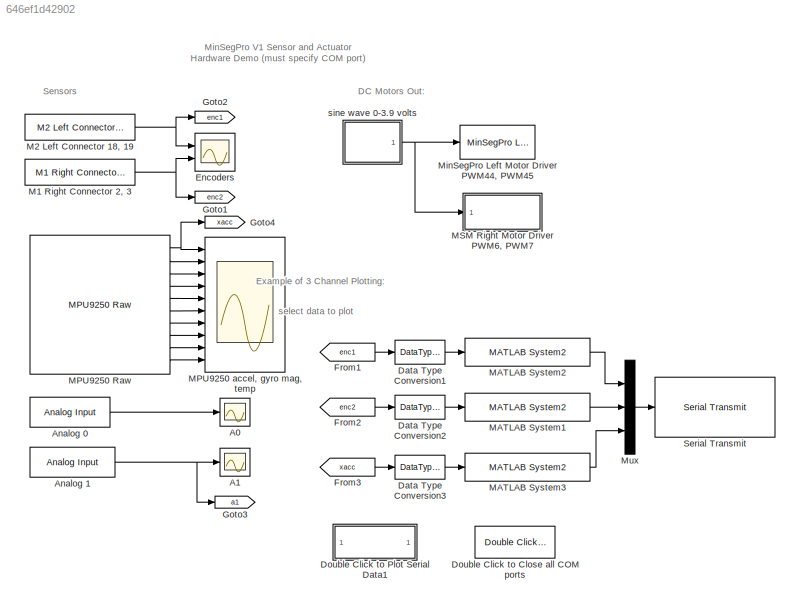
MODEL slx_646ef1d42902
KIND model
CONFIG AbsTol = auto
CONFIG FixedStep = auto
CONFIG MaxStep = auto
CONFIG MinStep = auto
CONFIG RelTol = 1e-3
CONFIG SampleTimeConstraint = Unconstrained
CONFIG Solver = ode45
CONFIG SolverMode = Auto
CONFIG SolverName = ode45
CONFIG StartTime = 0.0
CONFIG StopTime = 10.0
BLOCK [Scope] A0 
  DataFormat = StructureWithTime
  Floating = off
  NumInputPorts = 1
  Ports = [1]
  SampleTime = 0
  SaveName = ScopeData3
  TimeRange = 30
  YMax = 1100
  YMin = 100
BLOCK [Scope] A1
  DataFormat = StructureWithTime
  Floating = off
  NumInputPorts = 1
  Ports = [1]
  SampleTime = 0
  SaveName = ScopeData4
  TimeRange = 30
  YMax = 1100
  YMin = 300
BLOCK [Reference] Analog 0  REF=arduinolib/Analog Input
  Ports = [0, 1]
  SourceBlock = arduinolib/Analog Input
  SourceType = Arduino Analog Input
  blockPlatform = arduino
  pinNumber = 0
  sampleTime = -1
BLOCK [Reference] Analog 1  REF=arduinolib/Analog Input
  Ports = [0, 1]
  SourceBlock = arduinolib/Analog Input
  SourceType = Arduino Analog Input
  blockPlatform = arduino
  pinNumber = 1
  sampleTime = -1
BLOCK [DataTypeConversion] Data Type Conversion1
  OutDataTypeStr = single
  RndMeth = Floor
  SaturateOnIntegerOverflow = off
BLOCK [DataTypeConversion] Data Type Conversion2
  OutDataTypeStr = single
  RndMeth = Floor
  SaturateOnIntegerOverflow = off
BLOCK [DataTypeConversion] Data Type Conversion3
  OutDataTypeStr = single
  RndMeth = Floor
  SaturateOnIntegerOverflow = off
BLOCK [Reference] Double Click to Close all COM ports  REF=RASPlib/Double Click to
Close all COM ports
  Ports = []
  SourceBlock = RASPlib/Double Click to\nClose all COM ports
BLOCK [SubSystem] Double Click to Plot Serial Data1
  Ports = []
  RequestExecContextInheritance = off
BLOCK [Scope] Encoders
  DataFormat = StructureWithTime
  Floating = off
  NumInputPorts = 2
  Ports = [2]
  SampleTime = 0
  TimeRange = 30
  YMax = 1.05~112.35
  YMin = 0.95~101.65
BLOCK [From] From1
  GotoTag = enc1
BLOCK [From] From2
  GotoTag = enc2
BLOCK [From] From3
  GotoTag = xacc
BLOCK [Goto] Goto1
  GotoTag = enc2
BLOCK [Goto] Goto2
  GotoTag = enc1
BLOCK [Goto] Goto3
  GotoTag = a1
BLOCK [Goto] Goto4
  GotoTag = xacc
BLOCK [Reference] M1 Right Connector 2, 3  REF=MinSegLibrary_MinSegPro/M1 Right Connector 2, 3
  Encoder = 0
  PinA = 2
  PinB = 3
  Ports = [0, 1]
  SourceBlock = MinSegLibrary_MinSegPro/M1 Right Connector 2, 3
  SourceType = Encoder_arduino
BLOCK [Reference] M2 Left Connector 18, 19  REF=MinSegLibrary_MinSegPro/M2 Left Connector 18, 19
  Encoder = 1
  PinA = 19
  PinB = 18
  Ports = [0, 1]
  SourceBlock = MinSegLibrary_MinSegPro/M2 Left Connector 18, 19
  SourceType = Encoder_arduino
BLOCK [Reference] MATLAB System1  REF=RASPlib/Send single Port0/MATLAB System2
  Ports = [1, 1]
  SimulateUsing = Code generation
  SourceBlock = RASPlib/Send single Port0/MATLAB System2
  SourceType = so_float2bytes
BLOCK [Reference] MATLAB System2  REF=RASPlib/Send single Port0/MATLAB System2
  Ports = [1, 1]
  SimulateUsing = Code generation
  SourceBlock = RASPlib/Send single Port0/MATLAB System2
  SourceType = so_float2bytes
BLOCK [Reference] MATLAB System3  REF=RASPlib/Send single Port0/MATLAB System2
  Ports = [1, 1]
  SimulateUsing = Code generation
  SourceBlock = RASPlib/Send single Port0/MATLAB System2
  SourceType = so_float2bytes
BLOCK [Reference] MPU9250 Raw  REF=RASPlib/MPU9250 Raw
  Ports = [0, 10]
  SimulateUsing = Code generation
  SourceBlock = RASPlib/MPU9250 Raw
  SourceType = soMPU9250RAW
BLOCK [Scope] MPU9250 accel, gyro mag, temp
  DataFormat = StructureWithTime
  Floating = off
  NumInputPorts = 10
  Ports = [10]
  SampleTime = 0
  SaveName = ScopeData1
  TimeRange = 10
  YMax = 40000~40000~40000~5000~3000~27500~5~5~5~5
  YMin = -40000~-40000~-40000~-12500~-8000~7500~-5~-5~-5~-5
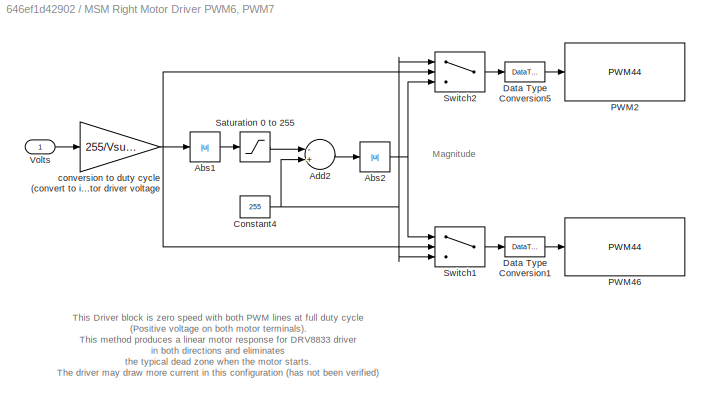
BLOCK [SubSystem] MSM Right Motor Driver PWM6, PWM7 
  Ports = [1]
  RequestExecContextInheritance = off
BLOCK [Abs] MSM Right Motor Driver PWM6, PWM7 /Abs1
  SaturateOnIntegerOverflow = off
BLOCK [Abs] MSM Right Motor Driver PWM6, PWM7 /Abs2
  SaturateOnIntegerOverflow = off
BLOCK [Sum] MSM Right Motor Driver PWM6, PWM7 /Add2
  InputSameDT = off
  Inputs = -+
  OutDataTypeStr = Inherit: Inherit via internal rule
  Ports = [2, 1]
  SaturateOnIntegerOverflow = off
BLOCK [Constant] MSM Right Motor Driver PWM6, PWM7 /Constant4
  Value = 255
BLOCK [DataTypeConversion] MSM Right Motor Driver PWM6, PWM7 /Data Type Conversion1
  OutDataTypeStr = uint8
  RndMeth = Floor
  SaturateOnIntegerOverflow = off
BLOCK [DataTypeConversion] MSM Right Motor Driver PWM6, PWM7 /Data Type Conversion5
  OutDataTypeStr = uint8
  RndMeth = Floor
  SaturateOnIntegerOverflow = off
BLOCK [Reference] MSM Right Motor Driver PWM6, PWM7 /PWM2  REF=MinSegLibrary_MinSegMega/MSM Left Motor Driver
PWM44, PWM45/PWM44
  Pin = 6
  Ports = [1]
  SourceBlock = MinSegLibrary_MinSegMega/MSM Left Motor Driver\nPWM44, PWM45/PWM44
  SourceType = soPWMWrite
BLOCK [Reference] MSM Right Motor Driver PWM6, PWM7 /PWM46  REF=MinSegLibrary_MinSegMega/MSM Left Motor Driver
PWM44, PWM45/PWM44
  Pin = 7
  Ports = [1]
  SourceBlock = MinSegLibrary_MinSegMega/MSM Left Motor Driver\nPWM44, PWM45/PWM44
  SourceType = soPWMWrite
BLOCK [Saturate] MSM Right Motor Driver PWM6, PWM7 /Saturation 0 to 255
  InputPortMap = u0
  LowerLimit = 0
  Ports = [1, 1]
  UpperLimit = 255
BLOCK [Switch] MSM Right Motor Driver PWM6, PWM7 /Switch1
  InputSameDT = off
  SaturateOnIntegerOverflow = off
BLOCK [Switch] MSM Right Motor Driver PWM6, PWM7 /Switch2
  InputSameDT = off
  SaturateOnIntegerOverflow = off
BLOCK [Inport] MSM Right Motor Driver PWM6, PWM7 /Volts
  IconDisplay = Port number
BLOCK [Gain] MSM Right Motor Driver PWM6, PWM7 /conversion to duty cycle (convert to int) denominator is motor driver voltage
  Gain = 255/Vsupply
  OutDataTypeStr = int16
  ParamDataTypeStr = Inherit: Inherit via internal rule
  SaturateOnIntegerOverflow = off
BLOCK [Reference] MinSegPro Left Motor Driver PWM44, PWM45  REF=MinSegLibrary_MinSegPro/MinSegPro Left Motor Driver
PWM44, PWM45
  PWMoffset = 0
  Ports = [1]
  SourceBlock = MinSegLibrary_MinSegPro/MinSegPro Left Motor Driver\nPWM44, PWM45
  Vsupply = 3.9
BLOCK [Mux] Mux
  DisplayOption = bar
  Inputs = 3
  Ports = [3, 1]
BLOCK [Reference] Serial Transmit  REF=arduinolib/Serial Transmit
  Ports = [1]
  SourceBlock = arduinolib/Serial Transmit
  SourceType = Arduino Serial Transmit
  blockPlatform = arduino
  portNumber = 0
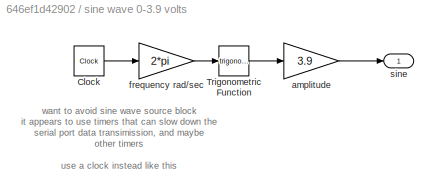
BLOCK [SubSystem] sine wave 0-3.9 volts
  Ports = [0, 1]
  RequestExecContextInheritance = off
BLOCK [Clock] sine wave 0-3.9 volts/Clock
BLOCK [Trigonometry] sine wave 0-3.9 volts/Trigonometric Function
  Ports = [1, 1]
BLOCK [Gain] sine wave 0-3.9 volts/amplitude
  Gain = 3.9
  OutDataTypeStr = Inherit: Inherit via internal rule
  ParamDataTypeStr = Inherit: Inherit via internal rule
  SaturateOnIntegerOverflow = off
BLOCK [Gain] sine wave 0-3.9 volts/frequency rad//sec
  Gain = 2*pi
  OutDataTypeStr = Inherit: Inherit via internal rule
  ParamDataTypeStr = Inherit: Inherit via internal rule
  SaturateOnIntegerOverflow = off
BLOCK [Outport] sine wave 0-3.9 volts/sine
  IconDisplay = Port number
ANNOTATION (root): Example of 3 Channel Plotting:
ANNOTATION (root): DC Motors Out:
ANNOTATION (root): MinSegPro V1 Sensor and Actuator Hardware Demo (must specify COM port)
ANNOTATION (root): Sensors
ANNOTATION (root): select data to plot
ANNOTATION MSM Right Motor Driver PWM6, PWM7 : Magnitude
ANNOTATION MSM Right Motor Driver PWM6, PWM7 : This Driver block is zero speed with both PWM lines at full duty cycle (Positive voltage on both motor terminals). This method produces a linear motor response for DRV8833 driver in both directions and eliminates the typical dead zone when the motor starts. The driver may draw more current in this configuration (has not been verified) The SN754410 driver this has no effect, so the driver could alt...<+76ch>
ANNOTATION sine wave 0-3.9 volts: want to avoid sine wave source block it appears to use timers that can slow down the serial port data transimission, and maybe other timers use a clock instead like this
LINE Analog 0:1 -> A0 :1
NET Analog 1:1 -> A1:1, Goto3:1
LINE Data Type Conversion1:1 -> MATLAB System2:1
LINE Data Type Conversion2:1 -> MATLAB System1:1
LINE Data Type Conversion3:1 -> MATLAB System3:1
LINE From1:1 -> Data Type Conversion1:1
LINE From2:1 -> Data Type Conversion2:1
LINE From3:1 -> Data Type Conversion3:1
NET M1 Right Connector 2, 3:1 -> Encoders:2, Goto1:1
NET M2 Left Connector 18, 19:1 -> Encoders:1, Goto2:1
LINE MATLAB System1:1 -> Mux:2
LINE MATLAB System2:1 -> Mux:1
LINE MATLAB System3:1 -> Mux:3
NET MPU9250 Raw:1 -> Goto4:1, MPU9250 accel, gyro mag, temp:1
LINE MPU9250 Raw:10 -> MPU9250 accel, gyro mag, temp:10
LINE MPU9250 Raw:2 -> MPU9250 accel, gyro mag, temp:2
LINE MPU9250 Raw:3 -> MPU9250 accel, gyro mag, temp:3
LINE MPU9250 Raw:4 -> MPU9250 accel, gyro mag, temp:4
LINE MPU9250 Raw:5 -> MPU9250 accel, gyro mag, temp:5
LINE MPU9250 Raw:6 -> MPU9250 accel, gyro mag, temp:6
LINE MPU9250 Raw:7 -> MPU9250 accel, gyro mag, temp:7
LINE MPU9250 Raw:8 -> MPU9250 accel, gyro mag, temp:8
LINE MPU9250 Raw:9 -> MPU9250 accel, gyro mag, temp:9
LINE MSM Right Motor Driver PWM6, PWM7 /Abs1:1 -> MSM Right Motor Driver PWM6, PWM7 /Saturation 0 to 255:1
NET MSM Right Motor Driver PWM6, PWM7 /Abs2:1 -> MSM Right Motor Driver PWM6, PWM7 /Switch1:1, MSM Right Motor Driver PWM6, PWM7 /Switch2:3
LINE MSM Right Motor Driver PWM6, PWM7 /Add2:1 -> MSM Right Motor Driver PWM6, PWM7 /Abs2:1
NET MSM Right Motor Driver PWM6, PWM7 /Constant4:1 -> MSM Right Motor Driver PWM6, PWM7 /Add2:2, MSM Right Motor Driver PWM6, PWM7 /Switch1:3, MSM Right Motor Driver PWM6, PWM7 /Switch2:1
LINE MSM Right Motor Driver PWM6, PWM7 /Data Type Conversion1:1 -> MSM Right Motor Driver PWM6, PWM7 /PWM46:1
LINE MSM Right Motor Driver PWM6, PWM7 /Data Type Conversion5:1 -> MSM Right Motor Driver PWM6, PWM7 /PWM2:1
LINE MSM Right Motor Driver PWM6, PWM7 /Saturation 0 to 255:1 -> MSM Right Motor Driver PWM6, PWM7 /Add2:1
LINE MSM Right Motor Driver PWM6, PWM7 /Switch1:1 -> MSM Right Motor Driver PWM6, PWM7 /Data Type Conversion1:1
LINE MSM Right Motor Driver PWM6, PWM7 /Switch2:1 -> MSM Right Motor Driver PWM6, PWM7 /Data Type Conversion5:1
LINE MSM Right Motor Driver PWM6, PWM7 /Volts:1 -> MSM Right Motor Driver PWM6, PWM7 /conversion to duty cycle (convert to int) denominator is motor driver voltage:1
NET MSM Right Motor Driver PWM6, PWM7 /conversion to duty cycle (convert to int) denominator is motor driver voltage:1 -> MSM Right Motor Driver PWM6, PWM7 /Abs1:1, MSM Right Motor Driver PWM6, PWM7 /Switch1:2, MSM Right Motor Driver PWM6, PWM7 /Switch2:2
LINE Mux:1 -> Serial Transmit:1
LINE sine wave 0-3.9 volts/Clock:1 -> sine wave 0-3.9 volts/frequency rad//sec:1
LINE sine wave 0-3.9 volts/Trigonometric Function:1 -> sine wave 0-3.9 volts/amplitude:1
LINE sine wave 0-3.9 volts/amplitude:1 -> sine wave 0-3.9 volts/sine:1
LINE sine wave 0-3.9 volts/frequency rad//sec:1 -> sine wave 0-3.9 volts/Trigonometric Function:1
NET sine wave 0-3.9 volts:1 -> MSM Right Motor Driver PWM6, PWM7 :1, MinSegPro Left Motor Driver PWM44, PWM45:1
note: NET lines group one-source signal fan-out (src -> all destinations, sorted); 1:1 wires keep LINE
